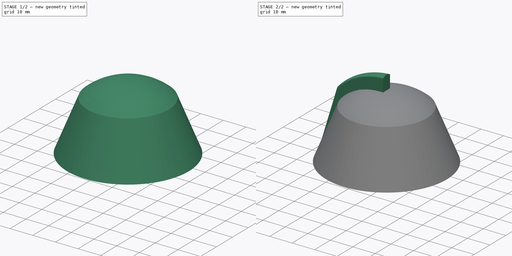
[diagram: build sequence overview — one tinted view per stage of 2, left to right]
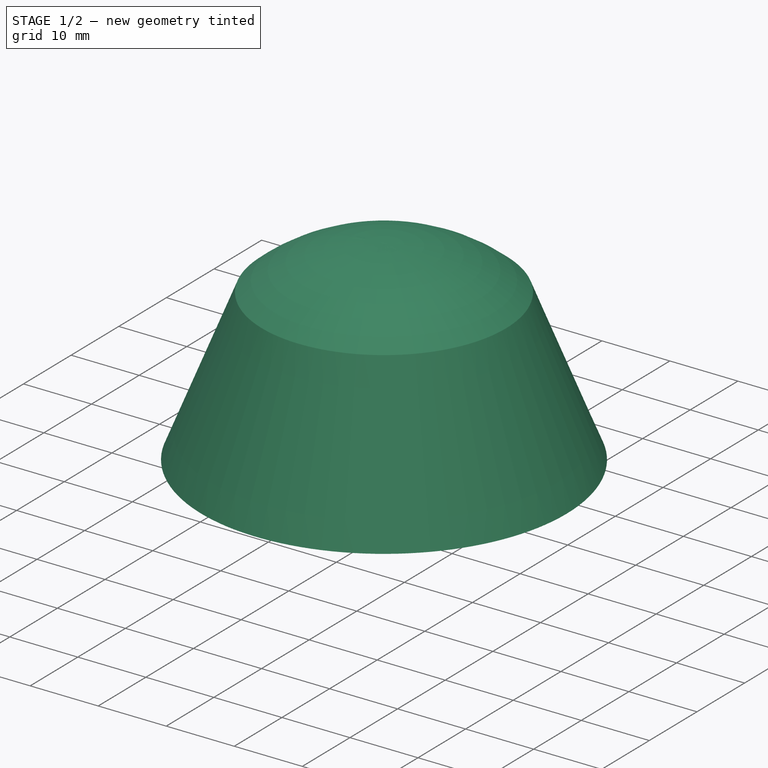
[diagram: stage 1 of 2 — iso view after this stage's code; geometry added in this stage tinted green]
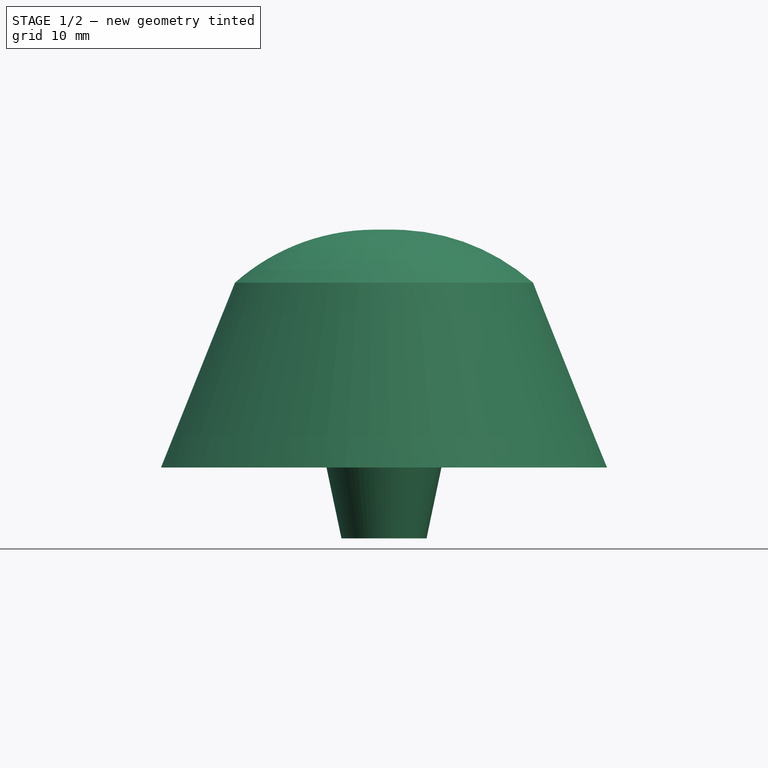
[diagram: stage 1 of 2 — front view after this stage's code; geometry added in this stage tinted green]
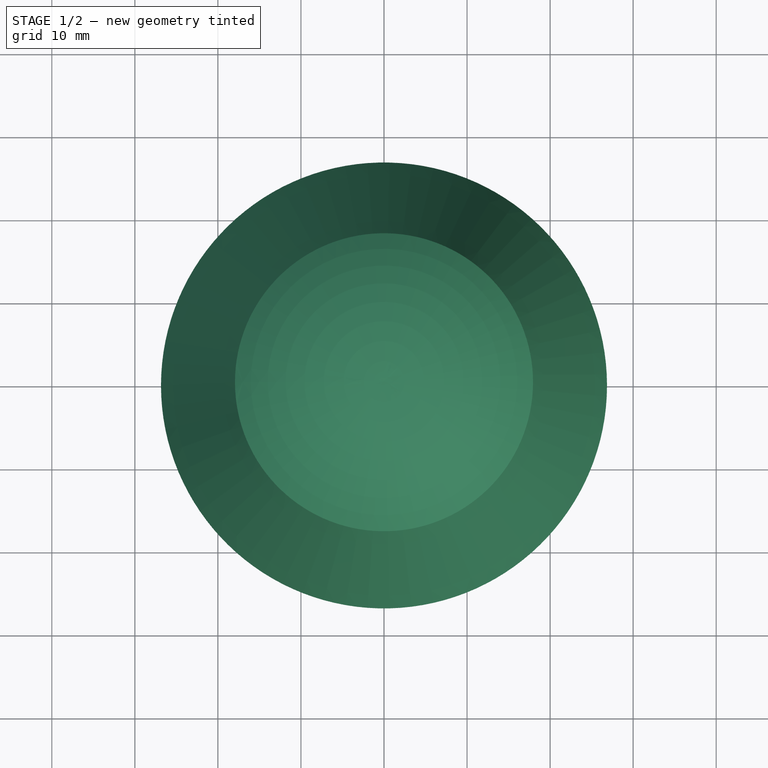
[diagram: stage 1 of 2 — top view after this stage's code; geometry added in this stage tinted green]
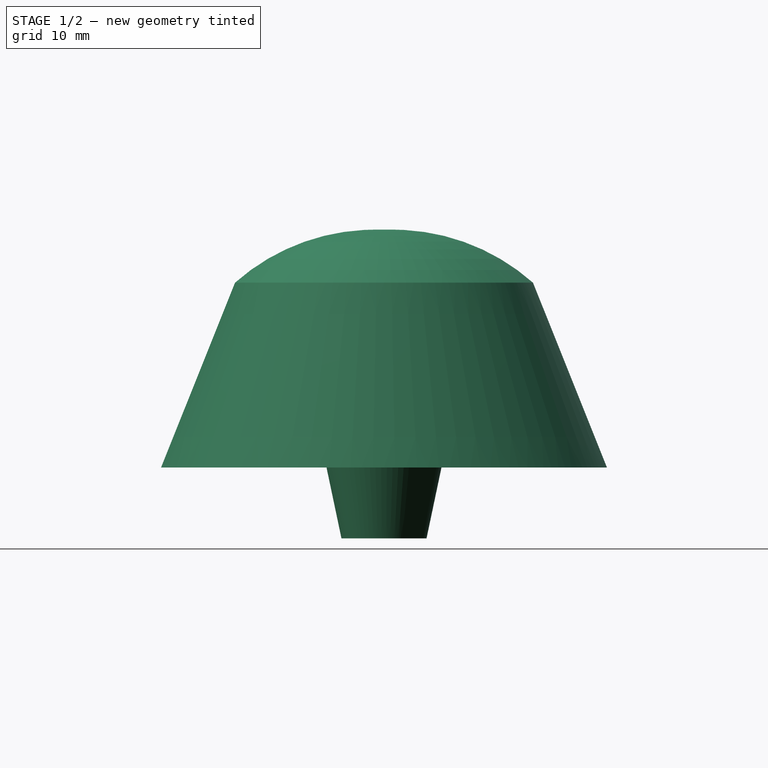
[diagram: stage 1 of 2 — right view after this stage's code; geometry added in this stage tinted green]
FCSTD DOCUMENT  (FreeCAD 0.20R29177 +426 (Git))
Label: project_6_v2
License: All rights reserved
LicenseURL: https://en.wikipedia.org/wiki/All_rights_reserved
objects: Sketcher::SketchObject×3, PartDesign::Revolution×1, PartDesign::AdditivePipe×1, PartDesign::Body×1
note: 8 computed .brp shape members not serialized (recipe doc carries the construction recipe); baked Part::Feature solids carry a one-line shape summary decoded from their .brp

FEATURE [Sketcher::SketchObject] Sketch
  FullyConstrained = false
  MapMode = 5
  Placement = pos=(0,0,0) rot=(1,0,0;1.5708rad)
  Support = -> [XZ_Plane]
  sketch-geometry (10):
    g0: LineSegment StartX=0 StartY=13.3261 StartZ=0 EndX=-1.361e-13 EndY=37.145 EndZ=0
    g1: LineSegment StartX=-17.9428 StartY=30.7855 StartZ=0 EndX=-26.8515 EndY=8.53442 EndZ=0
    g2: LineSegment StartX=-26.8515 StartY=8.53442 StartZ=0 EndX=-21.6366 EndY=8.53442 EndZ=0
    g3: LineSegment StartX=-21.6366 StartY=8.53442 StartZ=0 EndX=-14.5749 EndY=26.7862 EndZ=0
    g4: LineSegment StartX=-14.5749 StartY=26.7862 StartZ=0 EndX=-10.7725 EndY=26.7862 EndZ=0
    g5: LineSegment StartX=-10.7725 StartY=26.7862 StartZ=0 EndX=-5.12308 EndY=0 EndZ=0
    g6: LineSegment StartX=-5.12308 StartY=0 StartZ=0 EndX=-2.27878 EndY=0 EndZ=0
    g7: LineSegment StartX=-2.27878 StartY=0 StartZ=0 EndX=-2.27878 EndY=13.3261 EndZ=0
    g8: LineSegment StartX=-2.27878 StartY=13.3261 StartZ=0 EndX=0 EndY=13.3261 EndZ=0
    g9: ArcOfCircle CenterX=-1.09905 CenterY=11.754 CenterZ=0 NormalX=0 NormalY=0 NormalZ=1 AngleXU=0 Radius=25.4148 StartAngle=1.52754 EndAngle=2.29529
  constraints (17):
    c: PointOnObject(g0,g-2)
    c: Coincident(g1,g2)
    c: Horizontal(g2)
    c: Coincident(g2,g3)
    c: Coincident(g3,g4)
    c: Horizontal(g4)
    c: Coincident(g4,g5)
    c: Coincident(g5,g6)
    c: PointOnObject(g6,g-1)
    c: Coincident(g6,g7)
    c: Vertical(g7)
    c: Coincident(g7,g8)
    c: Horizontal(g8)
    c: Coincident(g0,g8)
    c: PointOnObject(g0,g-2)
    c: Coincident(g9,g1)
    c: Coincident(g9,g0)
FEATURE [PartDesign::Revolution] Revolution
  Angle = 360
  Axis = (0,2e-16,1)
  Base = (0,0,0)
  Placement = pos=(0,0,0) rot=(1,0,0;1.5708rad)
  Profile = -> Sketch
  ReferenceAxis = -> Sketch [V_Axis]
  Refine = true
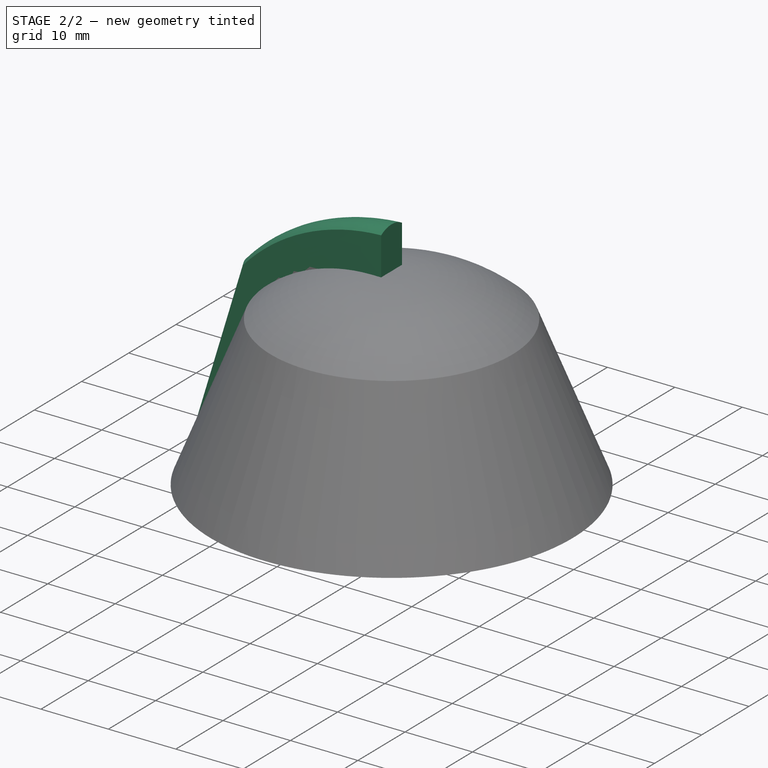
[diagram: stage 2 of 2 — iso view after this stage's code; geometry added in this stage tinted green]
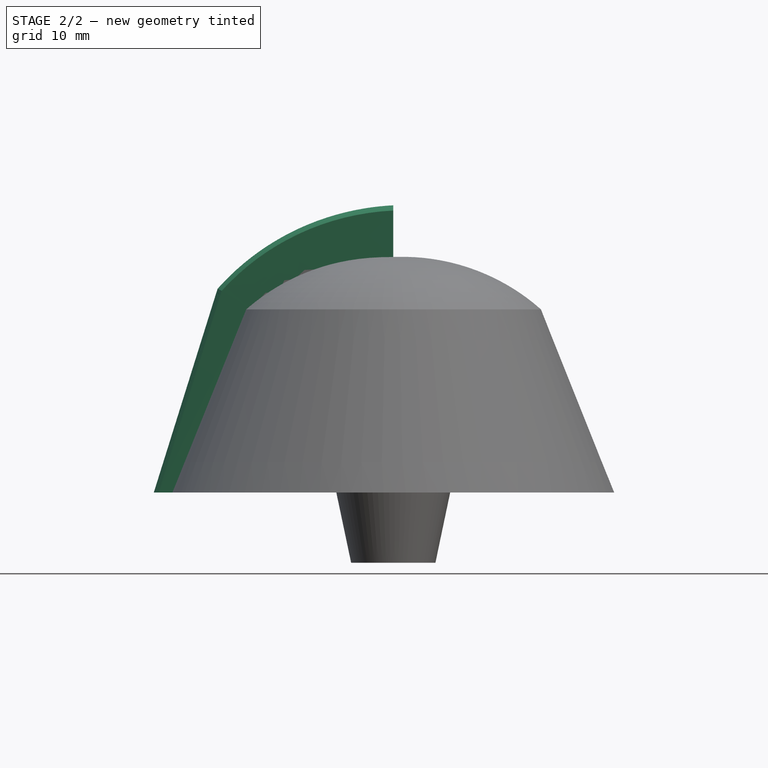
[diagram: stage 2 of 2 — front view after this stage's code; geometry added in this stage tinted green]
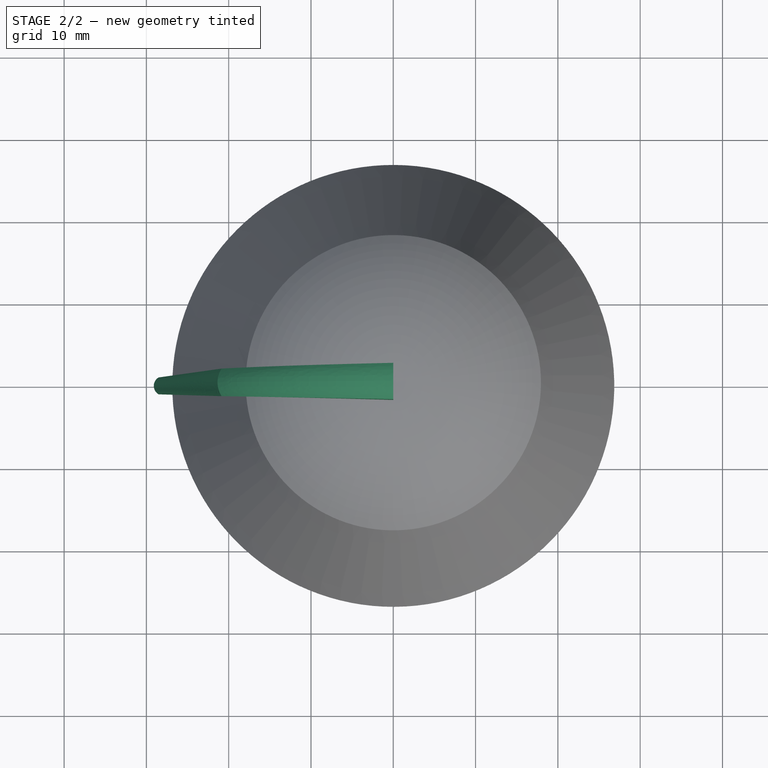
[diagram: stage 2 of 2 — top view after this stage's code; geometry added in this stage tinted green]
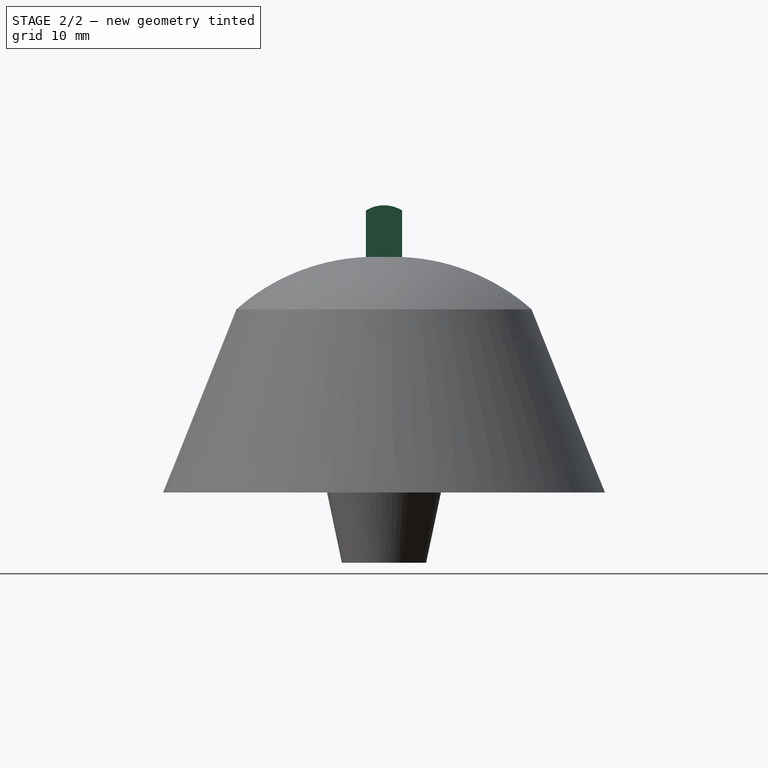
[diagram: stage 2 of 2 — right view after this stage's code; geometry added in this stage tinted green]
FEATURE [Sketcher::SketchObject] Sketch001
  FullyConstrained = false
  MapMode = 5
  Placement = pos=(0,0,0) rot=(0.57735,0.57735,0.57735;2.0944rad)
  Support = -> [YZ_Plane]
  sketch-geometry (4):
    g0: LineSegment StartX=-2.20844 StartY=36.097 StartZ=0 EndX=2.20844 EndY=36.097 EndZ=0
    g1: LineSegment StartX=-2.20844 StartY=36.097 StartZ=0 EndX=-2.20844 EndY=42.7904 EndZ=0
    g2: LineSegment StartX=2.20844 StartY=36.097 StartZ=0 EndX=2.20844 EndY=42.7904 EndZ=0
    g3: ArcOfCircle CenterX=0 CenterY=39.2709 CenterZ=0 NormalX=0 NormalY=0 NormalZ=1 AngleXU=0 Radius=4.15496 StartAngle=1.0104 EndAngle=2.13119
  constraints (9):
    c: Horizontal(g0)
    c: Coincident(g1,g0)
    c: Vertical(g1)
    c: Coincident(g2,g0)
    c: Vertical(g2)
    c: Coincident(g3,g1)
    c: Coincident(g3,g2)
    c: PointOnObject(g3,g-2)
    c: Equal(g1,g2)
FEATURE [Sketcher::SketchObject] Sketch002
  FullyConstrained = false
  MapMode = 5
  Placement = pos=(0,1.9e-15,8.53442) rot=(1,0,0;3.14159rad)
  Support = -> [Revolution]
  sketch-geometry (4):
    g0: LineSegment StartX=-28.5187 StartY=-1.02589 StartZ=0 EndX=-24.4845 EndY=-1.02589 EndZ=0
    g1: LineSegment StartX=-24.4845 StartY=-1.02589 StartZ=0 EndX=-24.4845 EndY=1.02589 EndZ=0
    g2: LineSegment StartX=-24.4845 StartY=1.02589 StartZ=0 EndX=-28.5187 EndY=1.02589 EndZ=0
    g3: ArcOfCircle CenterX=-27.9013 CenterY=0 CenterZ=0 NormalX=0 NormalY=0 NormalZ=1 AngleXU=0 Radius=1.19737 StartAngle=2.11258 EndAngle=4.1706
  constraints (9):
    c: Coincident(g0,g1)
    c: Coincident(g1,g2)
    c: Horizontal(g0)
    c: Horizontal(g2)
    c: Vertical(g1)
    c: Equal(g2,g0)
    c: Coincident(g3,g0)
    c: Coincident(g3,g2)
    c: PointOnObject(g3,g-1)
FEATURE [PartDesign::AdditivePipe] AdditivePipe
  AuxilleryCurvelinear = true
  AuxillerySpineTangent = false
  BaseFeature = -> Revolution
  Binormal = (0,0,0)
  Mode = 0
  Placement = pos=(0,0,0) rot=(1,0,0;1.5708rad)
  Profile = -> Sketch001
  Refine = true
  Sections = -> [Sketch002]
  Spine = -> Revolution [Edge3,Edge5]
  SpineTangent = false
  Transformation = 1
  Transition = 0
FEATURE [PartDesign::Body] Body
  Group = -> [Sketch,Revolution,Sketch001,Sketch002,AdditivePipe]
  Origin = -> Origin
  Tip = -> AdditivePipe
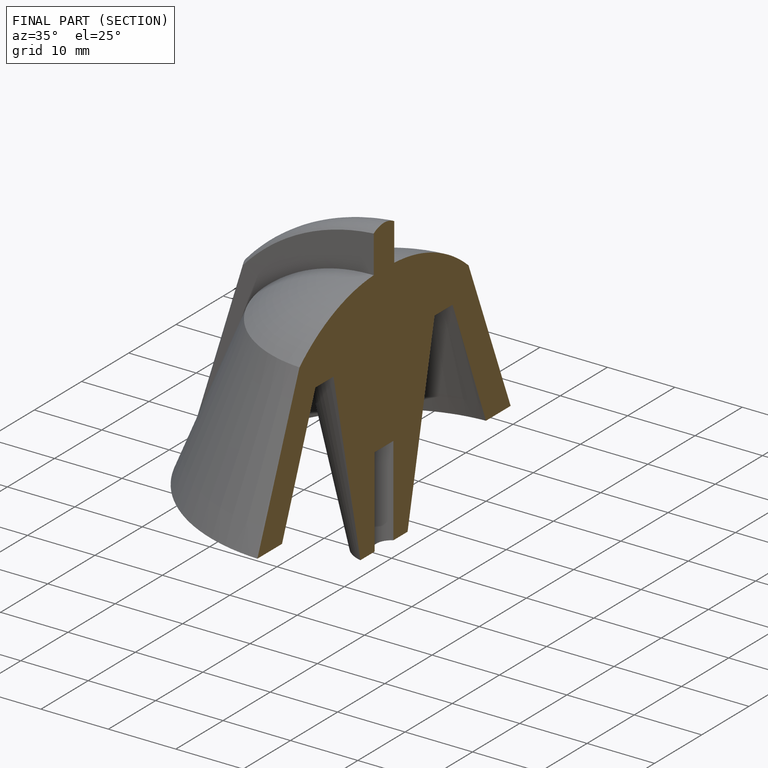
[diagram: finished part — half-section view (interior)]
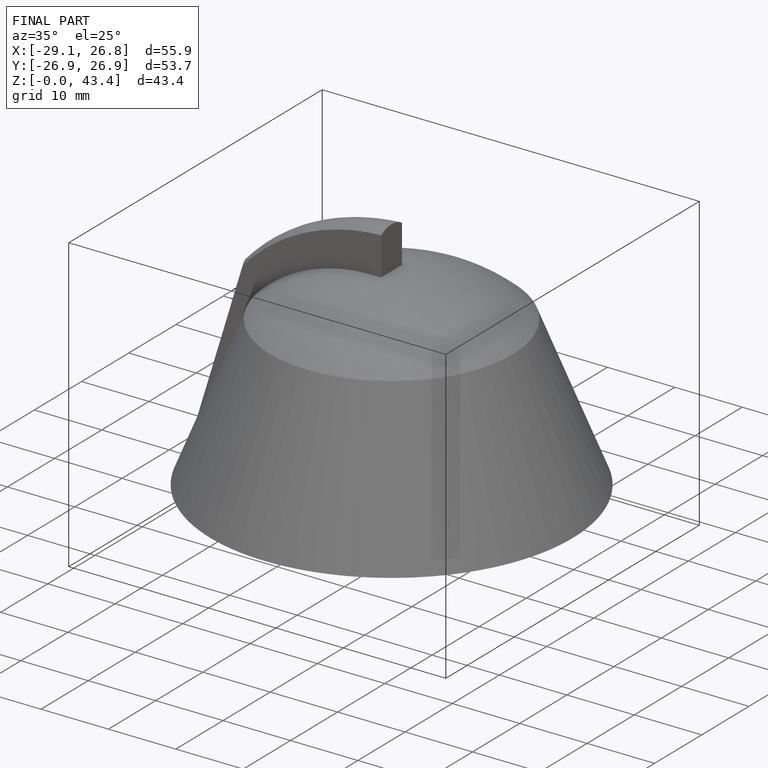
[diagram: finished part — iso view with bounding-box wireframe]
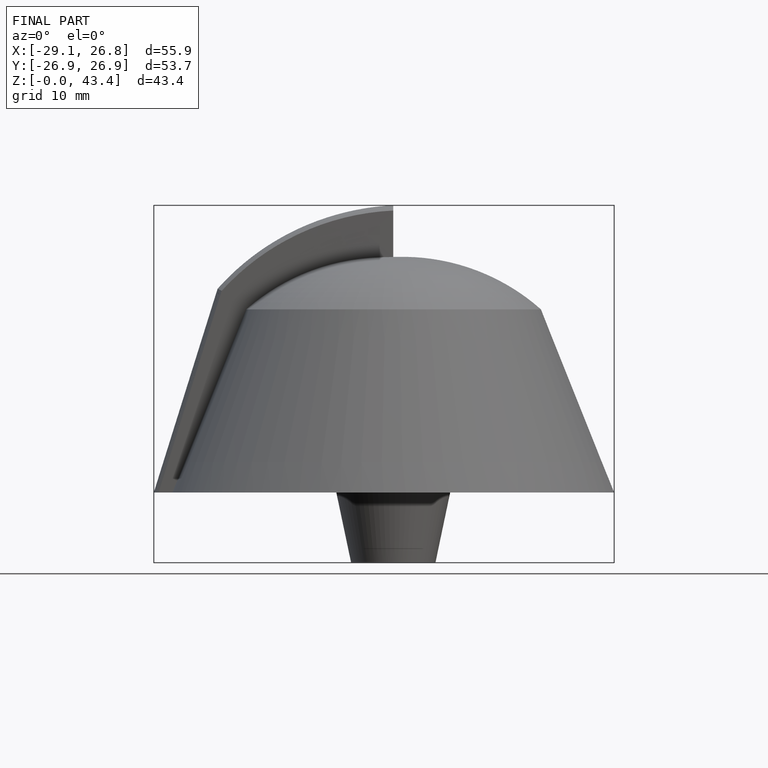
[diagram: finished part — front view with bounding-box wireframe]
